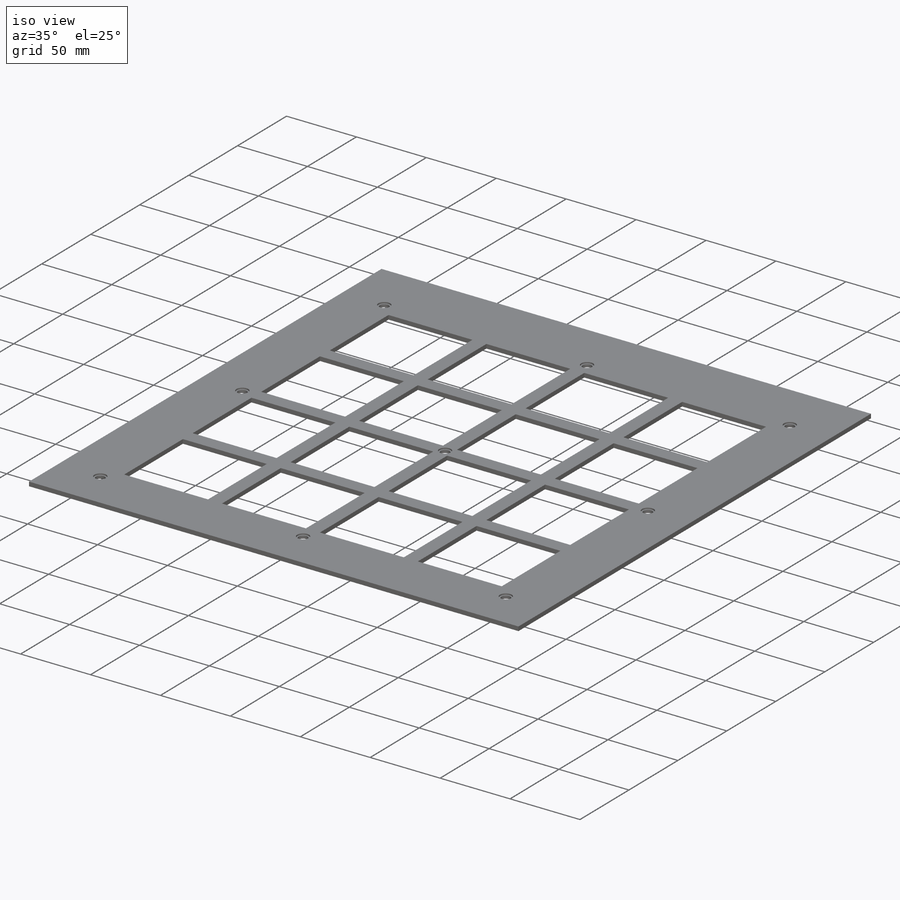
[diagram: iso view]
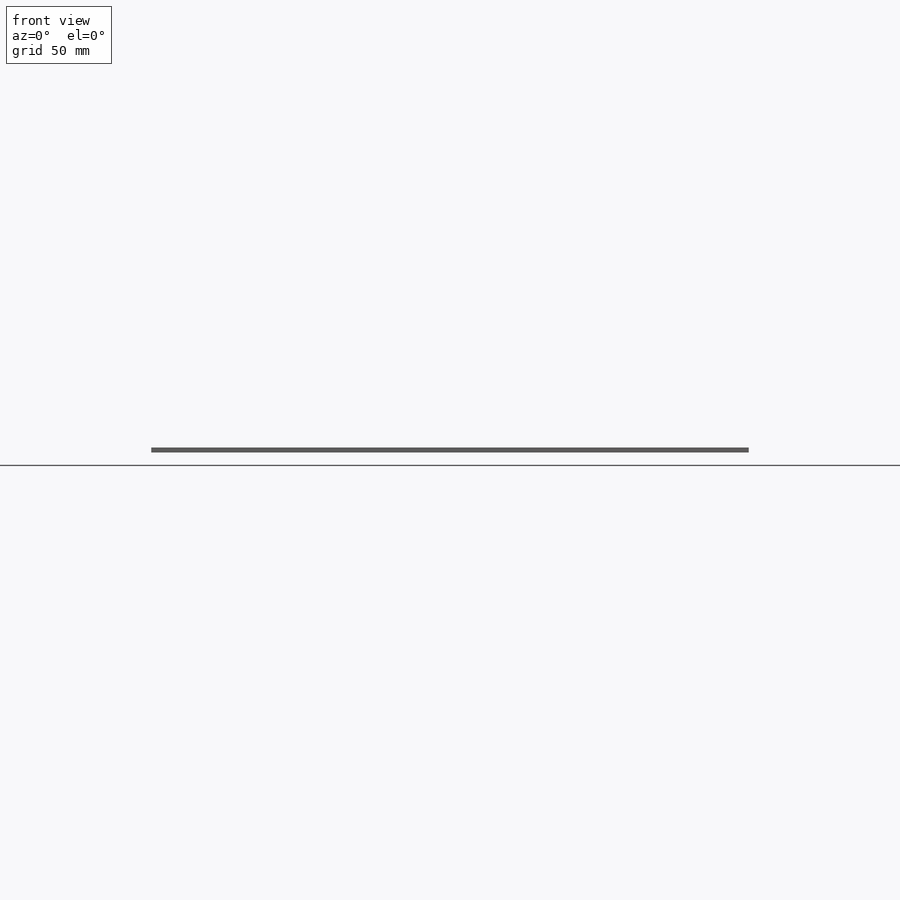
[diagram: front view]
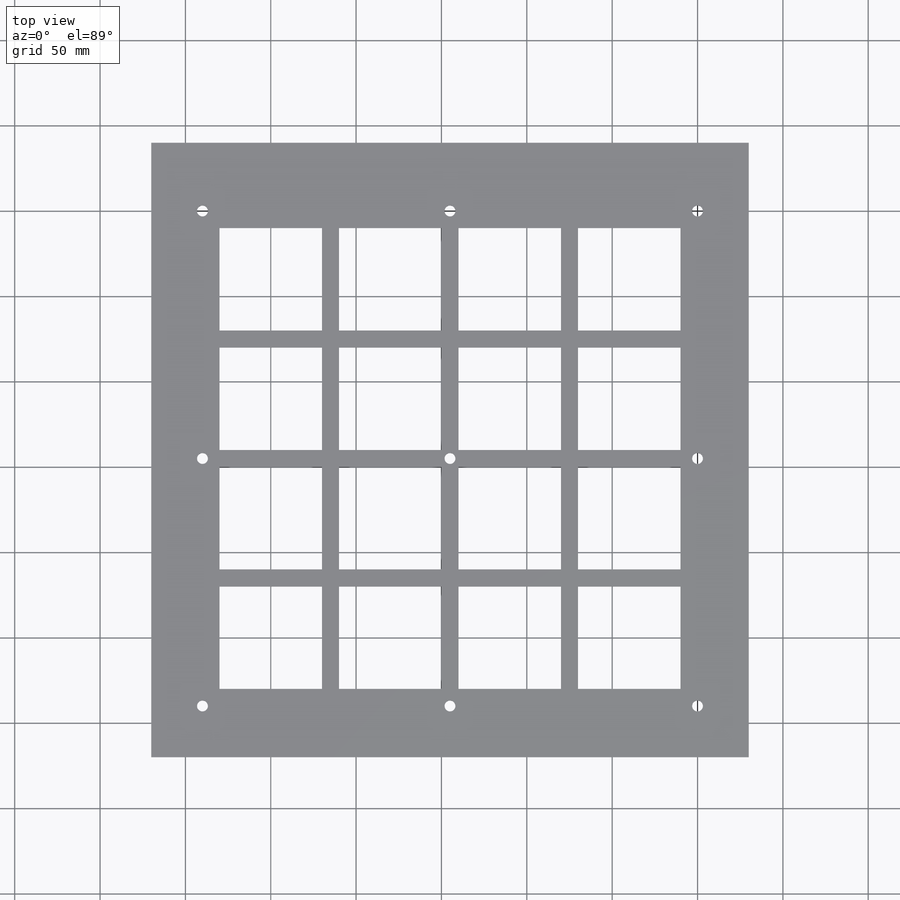
[diagram: top view]
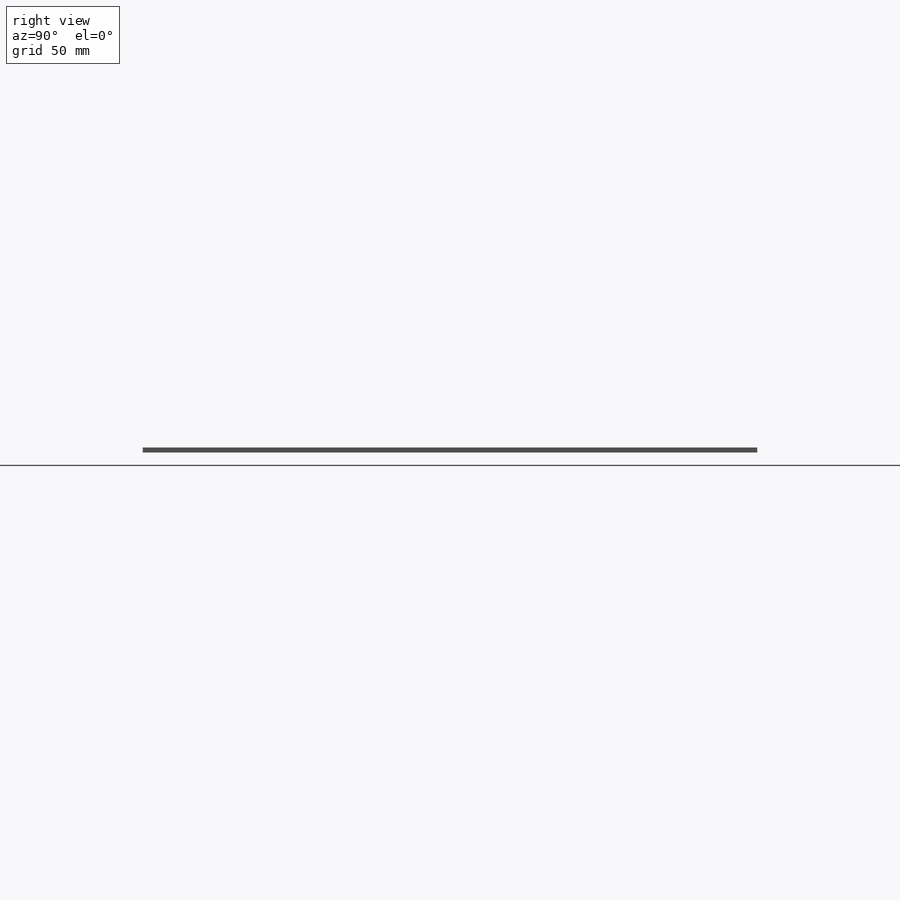
[diagram: right view]
SOLIDWORKS PART (.sldprt)
format: sldprt  version: not decoded by parser v0  size: 545,280 bytes
history: native  units: mm
features: plane x3, sketch x3, material x1, extrude x1, cut_extrude x1 (+10 scaffold rows collapsed)
feature tree (19):
  scaffold x10  (default folders/planes/origin — collapsed)
  material  "1.5714 (16NiCr4)"
  plane  "Plan de face"
  plane  "Plan de dessus"
  plane  "Plan de droite"
  sketch  "Esquisse1"  dims[c1.D1=60.0mm c1.D2=60.0mm c1.D3=60.0mm c1.D4=60.0mm c1.D5=60.0mm c1.D6=60.0mm c1.D7=60.0mm c1.D8=60.0mm c1.D9=270.0mm c1.D10=270.0mm c1.D11=10.0mm c1.D12=20.0mm c2.D11=20.0mm c2.D13=20.0mm c2.D14=20.0mm c2.D15=20.0mm c2.D16=30.0mm c2.D17=20.0mm c2.D18=20.0mm c2.D19=20.0mm]
  extrude  "Boss.-Extru.1"  Depth=3mm
  sketch  "Esquisse2"  dims[D1=~339.183223mm]
  cut_extrude  "Enlèv. mat.-Extru.1"  Depth=5mm
  sketch  "Esquisse2<2>"  dims[D1=1.0mm D5=1.0mm D6=1.0mm D7=5.0mm]
decode coverage: 5 of 5 modeling features carry decoded parameters
note: ~ marks probable driven/reference dimensions
note: suppression state not decoded; provenance and decode notes live in map.json
